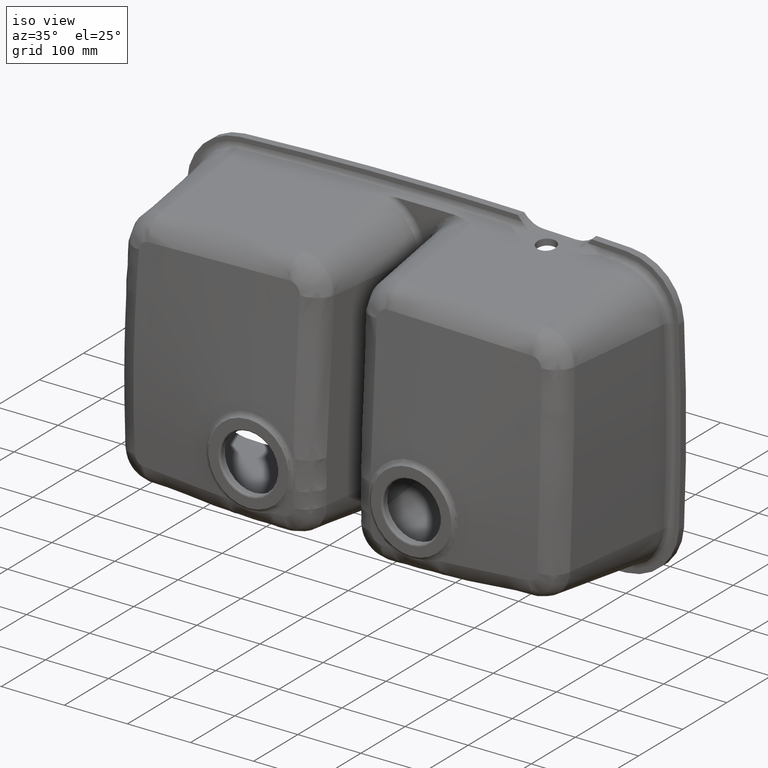
[diagram: clean part render]
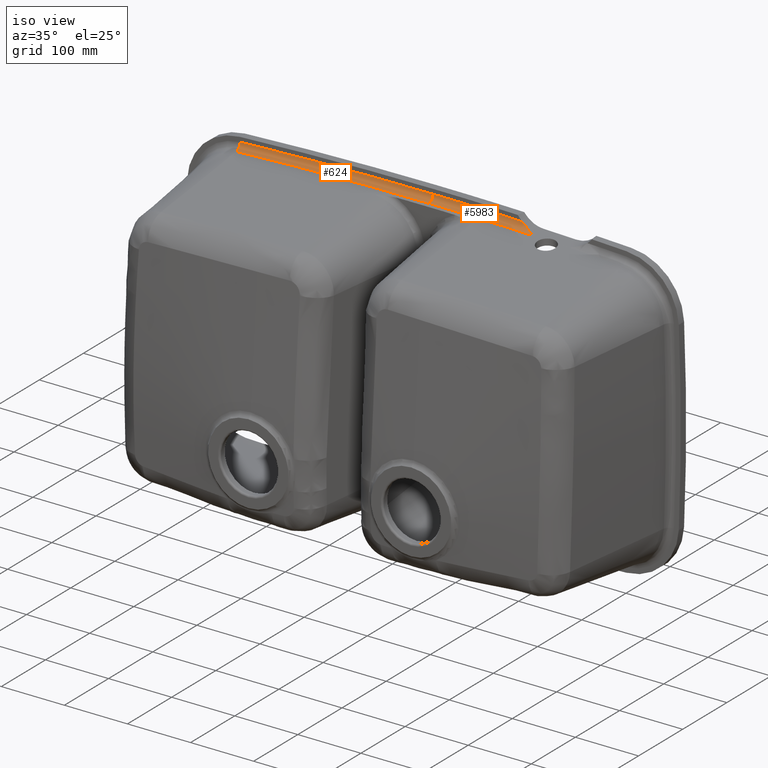
[diagram: same view with one multi-face feature highlighted, each face labeled with its STEP entity id]
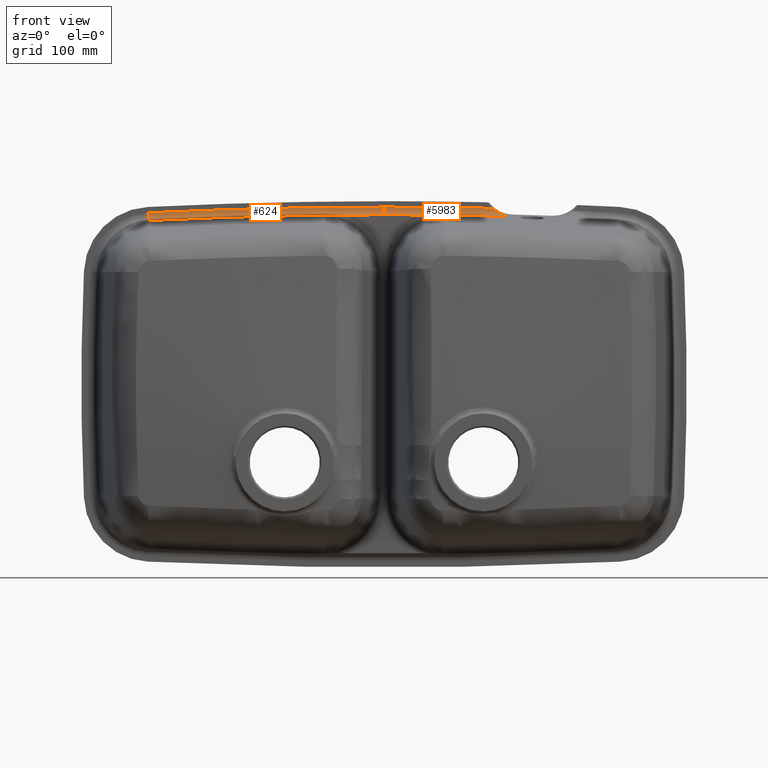
[diagram: same view with one multi-face feature highlighted, each face labeled with its STEP entity id]
A machine part, iso view. The highlighted faces form ONE feature: a constant-radius fillet chain: 2 tangent blend faces with common blend radius 10.03 mm. The faces share edges in the B-rep.
A second angle (front view) of the same feature is appended — it is thin or edge-on in the first view.
Their STEP definitions:
[1] entity #624 (Torus):
#1 = CARTESIAN_POINT ( 'NONE',  ( 183.3766767295733200, 206.5719848239262400, -6111.273807248827300 ) ) ;
#184 = DIRECTION ( 'NONE',  ( 0.0000000000000000000, 0.0000000000000000000, 1.000000000000000000 ) ) ;
#203 = CARTESIAN_POINT ( 'NONE',  ( 183.3766767295733200, 206.5719848239262400, 220.1872378280285100 ) ) ;
#624 = ADVANCED_FACE ( 'NONE', ( #5767 ), #8227, .F. ) ;
#812 = DIRECTION ( 'NONE',  ( 0.04830658970213308500, 0.0000000000000000000, -0.9988325552320318500 ) ) ;
#1503 = DIRECTION ( 'NONE',  ( -0.0000000000000000000, -1.000000000000000000, -0.0000000000000000000 ) ) ;
#1688 = AXIS2_PLACEMENT_3D ( 'NONE', #4239, #1927, #7367 ) ;
#1851 = DIRECTION ( 'NONE',  ( 0.0000000000000000000, 1.000000000000000000, 0.0000000000000000000 ) ) ;
#1927 = DIRECTION ( 'NONE',  ( 0.0000000000000000000, 1.000000000000000000, 0.0000000000000000000 ) ) ;
#1978 = CARTESIAN_POINT ( 'NONE',  ( -122.9555177826466500, 215.3796353095725600, 222.7392224679234400 ) ) ;
#2077 = EDGE_CURVE ( 'NONE', #8661, #5732, #5269, .T. ) ;
#2457 = CIRCLE ( 'NONE', #1688, 6341.416282977820600 ) ;
#2862 = EDGE_CURVE ( 'NONE', #5645, #8661, #4286, .T. ) ;
#3646 = EDGE_CURVE ( 'NONE', #3909, #5645, #2457, .T. ) ;
#3909 = VERTEX_POINT ( 'NONE', #1978 ) ;
#3981 = ORIENTED_EDGE ( 'NONE', *, *, #2077, .F. ) ;
#4005 = DIRECTION ( 'NONE',  ( 0.9988325552320318500, 2.674131359651395600E-014, 0.04830658970213361900 ) ) ;
#4015 = AXIS2_PLACEMENT_3D ( 'NONE', #7288, #1851, #184 ) ;
#4187 = DIRECTION ( 'NONE',  ( 0.0000000000000000000, 0.0000000000000000000, 1.000000000000000000 ) ) ;
#4239 = CARTESIAN_POINT ( 'NONE',  ( 183.3766767295733200, 215.3796353095725600, -6111.273807248827300 ) ) ;
#4286 = CIRCLE ( 'NONE', #8617, 10.03000000000001200 ) ;
#4708 = EDGE_CURVE ( 'NONE', #5732, #3909, #10036, .T. ) ;
#5269 = CIRCLE ( 'NONE', #9076, 6331.461045076857800 ) ;
#5377 = DIRECTION ( 'NONE',  ( 0.0000000000000000000, 0.0000000000000000000, 1.000000000000000000 ) ) ;
#5645 = VERTEX_POINT ( 'NONE', #8798 ) ;
#5732 = VERTEX_POINT ( 'NONE', #6127 ) ;
#5767 = FACE_OUTER_BOUND ( 'NONE', #7214, .T. ) ;
#6127 = CARTESIAN_POINT ( 'NONE',  ( -122.4746141899774900, 206.5719848239261900, 212.7956067573620700 ) ) ;
#6530 = CARTESIAN_POINT ( 'NONE',  ( 183.3766767295733200, 205.3496353095725600, 230.1424757289929300 ) ) ;
#6843 = ORIENTED_EDGE ( 'NONE', *, *, #3646, .F. ) ;
#7214 = EDGE_LOOP ( 'NONE', ( #9713, #6843, #10136, #3981 ) ) ;
#7288 = CARTESIAN_POINT ( 'NONE',  ( 183.3766767295733200, 205.3496353095725600, -6111.273807248827300 ) ) ;
#7367 = DIRECTION ( 'NONE',  ( 0.0000000000000000000, 0.0000000000000000000, 1.000000000000000000 ) ) ;
#8090 = DIRECTION ( 'NONE',  ( -1.000000000000000000, 0.0000000000000000000, 0.0000000000000000000 ) ) ;
#8103 = AXIS2_PLACEMENT_3D ( 'NONE', #10130, #4005, #812 ) ;
#8227 = TOROIDAL_SURFACE ( 'NONE', #4015, 6341.416282977820600, 10.02999999999999900 ) ;
#8617 = AXIS2_PLACEMENT_3D ( 'NONE', #6530, #8090, #4187 ) ;
#8661 = VERTEX_POINT ( 'NONE', #203 ) ;
#8798 = CARTESIAN_POINT ( 'NONE',  ( 183.3766767295733200, 215.3796353095725600, 230.1424757289929300 ) ) ;
#9076 = AXIS2_PLACEMENT_3D ( 'NONE', #1, #1503, #5377 ) ;
#9713 = ORIENTED_EDGE ( 'NONE', *, *, #2862, .F. ) ;
#10036 = CIRCLE ( 'NONE', #8103, 10.03000000000001400 ) ;
#10130 = CARTESIAN_POINT ( 'NONE',  ( -122.9555177826463500, 205.3496353095726200, 222.7392224679226700 ) ) ;
#10136 = ORIENTED_EDGE ( 'NONE', *, *, #4708, .F. ) ;
[2] entity #5983 (Torus):
#140 = CARTESIAN_POINT ( 'NONE',  ( 183.3766767295733200, 215.3796353095725600, -6111.273807248827300 ) ) ;
#153 = ORIENTED_EDGE ( 'NONE', *, *, #2491, .F. ) ;
#157 = CARTESIAN_POINT ( 'NONE',  ( 339.0758206051122600, 211.3914874679213400, 220.1544217750105200 ) ) ;
#203 = CARTESIAN_POINT ( 'NONE',  ( 183.3766767295733200, 206.5719848239262400, 220.1872378280285100 ) ) ;
#286 = CARTESIAN_POINT ( 'NONE',  ( 330.8675362399921500, 214.4533631804130800, 224.1748102918007200 ) ) ;
#581 = TOROIDAL_SURFACE ( 'NONE', #6189, 6341.416282977820600, 10.02999999999999900 ) ;
#676 = CARTESIAN_POINT ( 'NONE',  ( 364.6441080827857500, 207.3556353095737800, 217.7198330128301800 ) ) ;
#746 = ORIENTED_EDGE ( 'NONE', *, *, #7766, .F. ) ;
#915 = CARTESIAN_POINT ( 'NONE',  ( 364.2010210794787200, 206.8432710734001300, 217.6378974730148200 ) ) ;
#1042 = CARTESIAN_POINT ( 'NONE',  ( 345.3380787044754900, 208.1492843016927500, 218.4382985399660700 ) ) ;
#1340 = ORIENTED_EDGE ( 'NONE', *, *, #5936, .F. ) ;
#1521 = CARTESIAN_POINT ( 'NONE',  ( 364.4192426343167900, 207.1042280952900700, 217.6749340123418800 ) ) ;
#1699 = EDGE_LOOP ( 'NONE', ( #8998, #3084, #153, #1340, #746, #2789 ) ) ;
#1853 = CARTESIAN_POINT ( 'NONE',  ( 341.8728047081181100, 210.0435861067129200, 219.2794664856100700 ) ) ;
#2491 = EDGE_CURVE ( 'NONE', #9408, #8661, #2957, .T. ) ;
#2534 = CARTESIAN_POINT ( 'NONE',  ( 326.5477502160146100, 215.3098568524139600, 227.1879645112470600 ) ) ;
#2599 = CARTESIAN_POINT ( 'NONE',  ( 346.4091372746851200, 207.3556353095725600, 218.2158085851802100 ) ) ;
#2667 = CARTESIAN_POINT ( 'NONE',  ( 324.8867146192602600, 215.3796353095725600, 228.5633659909322500 ) ) ;
#2743 = B_SPLINE_CURVE_WITH_KNOTS ( 'NONE', 3,
 ( #676, #1521, #915, #5687 ),
 .UNSPECIFIED., .F., .F.,
 ( 4, 4 ),
 ( 0.02679812486697617400, 0.02781341094931952300 ),
 .UNSPECIFIED. ) ;
#2789 = ORIENTED_EDGE ( 'NONE', *, *, #6619, .T. ) ;
#2862 = EDGE_CURVE ( 'NONE', #5645, #8661, #4286, .T. ) ;
#2957 = CIRCLE ( 'NONE', #9796, 6331.461045076857800 ) ;
#3084 = ORIENTED_EDGE ( 'NONE', *, *, #2862, .T. ) ;
#3298 = CARTESIAN_POINT ( 'NONE',  ( 346.4091372746851200, 207.3556353095725600, 218.2158085851802100 ) ) ;
#3352 = CARTESIAN_POINT ( 'NONE',  ( 345.5616163116056900, 208.0068885482680800, 218.3921143023007100 ) ) ;
#3380 = CARTESIAN_POINT ( 'NONE',  ( 346.2121466178851400, 207.5437023904853500, 218.2592843563867300 ) ) ;
#3444 = VERTEX_POINT ( 'NONE', #6461 ) ;
#3713 = DIRECTION ( 'NONE',  ( 0.0000000000000000000, 0.0000000000000000000, -1.000000000000000000 ) ) ;
#4165 = CARTESIAN_POINT ( 'NONE',  ( 345.9980469091436200, 207.7031151150274900, 218.3025279470681100 ) ) ;
#4187 = DIRECTION ( 'NONE',  ( 0.0000000000000000000, 0.0000000000000000000, 1.000000000000000000 ) ) ;
#4286 = CIRCLE ( 'NONE', #8617, 10.03000000000001200 ) ;
#4452 = DIRECTION ( 'NONE',  ( 0.0000000000000000000, 1.000000000000000000, -0.0000000000000000000 ) ) ;
#4885 = CARTESIAN_POINT ( 'NONE',  ( 344.2002649059375000, 208.8209114989825300, 218.6857943595491900 ) ) ;
#4980 = CARTESIAN_POINT ( 'NONE',  ( 333.5758076150444300, 213.5979826829068900, 222.6271221175219100 ) ) ;
#5108 = FACE_OUTER_BOUND ( 'NONE', #1699, .T. ) ;
#5628 = CARTESIAN_POINT ( 'NONE',  ( 325.7111947631125900, 215.3796353095725100, 227.8575084560800100 ) ) ;
#5645 = VERTEX_POINT ( 'NONE', #8798 ) ;
#5687 = CARTESIAN_POINT ( 'NONE',  ( 363.9896678930761000, 206.5719848239263000, 217.6106057222857500 ) ) ;
#5739 = CARTESIAN_POINT ( 'NONE',  ( 183.3766767295733200, 205.3496353095725600, -6111.273807248827300 ) ) ;
#5755 = CARTESIAN_POINT ( 'NONE',  ( 329.1114389998224400, 214.8895848593722100, 225.3141930409383100 ) ) ;
#5936 = EDGE_CURVE ( 'NONE', #9929, #9408, #2743, .T. ) ;
#5983 = ADVANCED_FACE ( 'NONE', ( #5108 ), #581, .F. ) ;
#6189 = AXIS2_PLACEMENT_3D ( 'NONE', #5739, #7445, #7296 ) ;
#6403 = DIRECTION ( 'NONE',  ( 0.0000000000000000000, 0.0000000000000000000, 1.000000000000000000 ) ) ;
#6414 = DIRECTION ( 'NONE',  ( -8.703946054865483900E-014, 0.0000000000000000000, 1.000000000000000000 ) ) ;
#6461 = CARTESIAN_POINT ( 'NONE',  ( 324.8867146192602600, 215.3796353095725600, 228.5633659909322500 ) ) ;
#6530 = CARTESIAN_POINT ( 'NONE',  ( 183.3766767295733200, 205.3496353095725600, 230.1424757289929300 ) ) ;
#6543 = CARTESIAN_POINT ( 'NONE',  ( 328.2478900709115200, 215.0649876934525900, 225.9162896546436600 ) ) ;
#6619 = EDGE_CURVE ( 'NONE', #7111, #3444, #8376, .T. ) ;
#7081 = AXIS2_PLACEMENT_3D ( 'NONE', #140, #8744, #6403 ) ;
#7111 = VERTEX_POINT ( 'NONE', #3298 ) ;
#7226 = CARTESIAN_POINT ( 'NONE',  ( 331.7602748665103100, 214.1923485393743100, 223.6374250100090500 ) ) ;
#7290 = CARTESIAN_POINT ( 'NONE',  ( 334.4862734856674300, 213.2687253964078300, 222.1610105562355400 ) ) ;
#7296 = DIRECTION ( 'NONE',  ( 0.0000000000000000000, 0.0000000000000000000, 1.000000000000000000 ) ) ;
#7399 = CIRCLE ( 'NONE', #9522, 6331.588930129774800 ) ;
#7445 = DIRECTION ( 'NONE',  ( 0.0000000000000000000, 1.000000000000000000, 0.0000000000000000000 ) ) ;
#7455 = CARTESIAN_POINT ( 'NONE',  ( 364.6441080827857500, 207.3556353095737800, 217.7198330128301800 ) ) ;
#7766 = EDGE_CURVE ( 'NONE', #7111, #9929, #7399, .T. ) ;
#8090 = DIRECTION ( 'NONE',  ( -1.000000000000000000, 0.0000000000000000000, 0.0000000000000000000 ) ) ;
#8376 = B_SPLINE_CURVE_WITH_KNOTS ( 'NONE', 3,
 ( #2599, #3380, #4165, #3352, #1042, #8824, #4885, #9689, #1853, #157, #9558, #7290, #4980, #7226, #286, #5755, #6543, #2534, #5628, #2667 ),
 .UNSPECIFIED., .F., .F.,
 ( 4, 2, 2, 2, 2, 2, 2, 2, 2, 4 ),
 ( 3.342213888644168100E-016, 0.0008064559994471981600, 0.001612911998894061900, 0.003225823997787804300, 0.006451647995575448100, 0.01290329599115094100, 0.01612911998893861200, 0.01935494398672628300, 0.02258076798451395800, 0.02580659198230163300 ),
 .UNSPECIFIED. ) ;
#8617 = AXIS2_PLACEMENT_3D ( 'NONE', #6530, #8090, #4187 ) ;
#8661 = VERTEX_POINT ( 'NONE', #203 ) ;
#8744 = DIRECTION ( 'NONE',  ( 0.0000000000000000000, 1.000000000000000000, 0.0000000000000000000 ) ) ;
#8798 = CARTESIAN_POINT ( 'NONE',  ( 183.3766767295733200, 215.3796353095725600, 230.1424757289929300 ) ) ;
#8824 = CARTESIAN_POINT ( 'NONE',  ( 344.6607508319730200, 208.5630107213412400, 218.5823747549779900 ) ) ;
#8998 = ORIENTED_EDGE ( 'NONE', *, *, #9945, .F. ) ;
#9072 = CARTESIAN_POINT ( 'NONE',  ( 183.3766767295733200, 207.3556353095725600, -6111.273807248827300 ) ) ;
#9244 = CIRCLE ( 'NONE', #7081, 6341.416282977820600 ) ;
#9408 = VERTEX_POINT ( 'NONE', #9881 ) ;
#9484 = DIRECTION ( 'NONE',  ( -0.0000000000000000000, -1.000000000000000000, -0.0000000000000000000 ) ) ;
#9515 = CARTESIAN_POINT ( 'NONE',  ( 183.3766767295733200, 206.5719848239262400, -6111.273807248827300 ) ) ;
#9522 = AXIS2_PLACEMENT_3D ( 'NONE', #9072, #4452, #3713 ) ;
#9558 = CARTESIAN_POINT ( 'NONE',  ( 337.2296956260420900, 212.2028488628876100, 220.8708829661277400 ) ) ;
#9689 = CARTESIAN_POINT ( 'NONE',  ( 342.8115198361363100, 209.5723902722239700, 219.0213565990930500 ) ) ;
#9796 = AXIS2_PLACEMENT_3D ( 'NONE', #9515, #9484, #6414 ) ;
#9881 = CARTESIAN_POINT ( 'NONE',  ( 363.9896678930761000, 206.5719848239263000, 217.6106057222857500 ) ) ;
#9929 = VERTEX_POINT ( 'NONE', #7455 ) ;
#9945 = EDGE_CURVE ( 'NONE', #5645, #3444, #9244, .T. ) ;